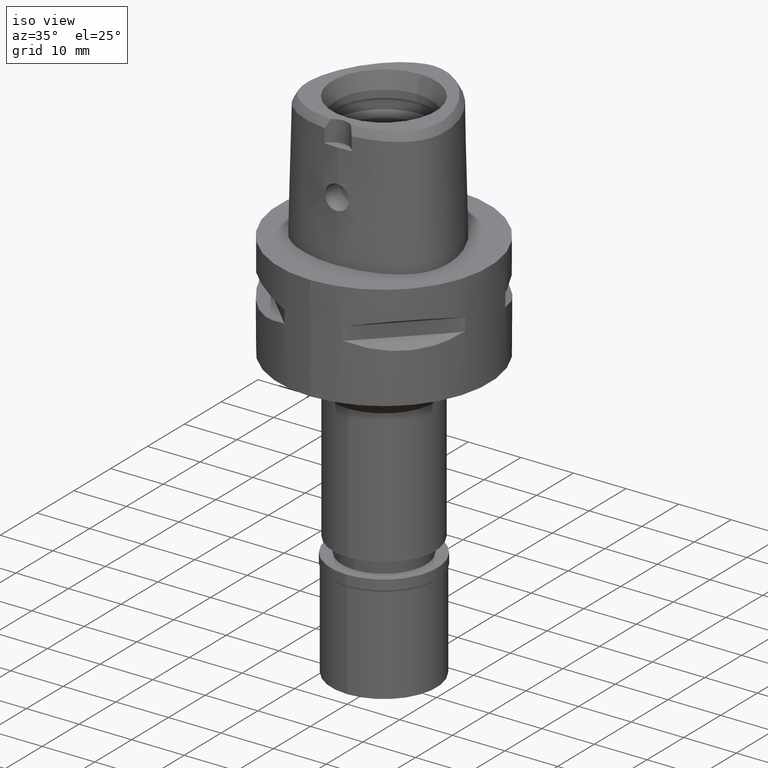
[diagram: clean part render]
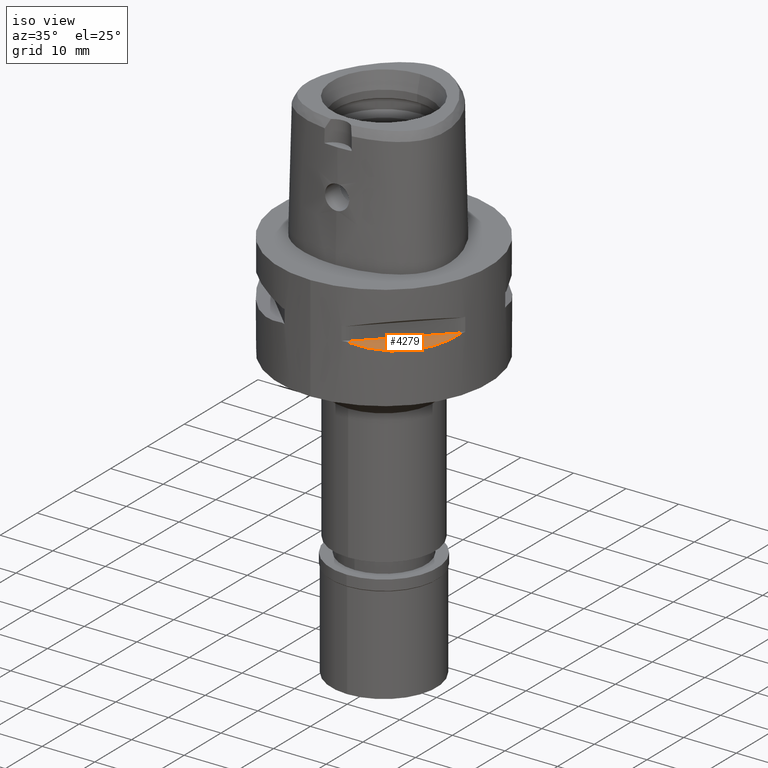
[diagram: same view with one face highlighted and labeled with its STEP entity id]
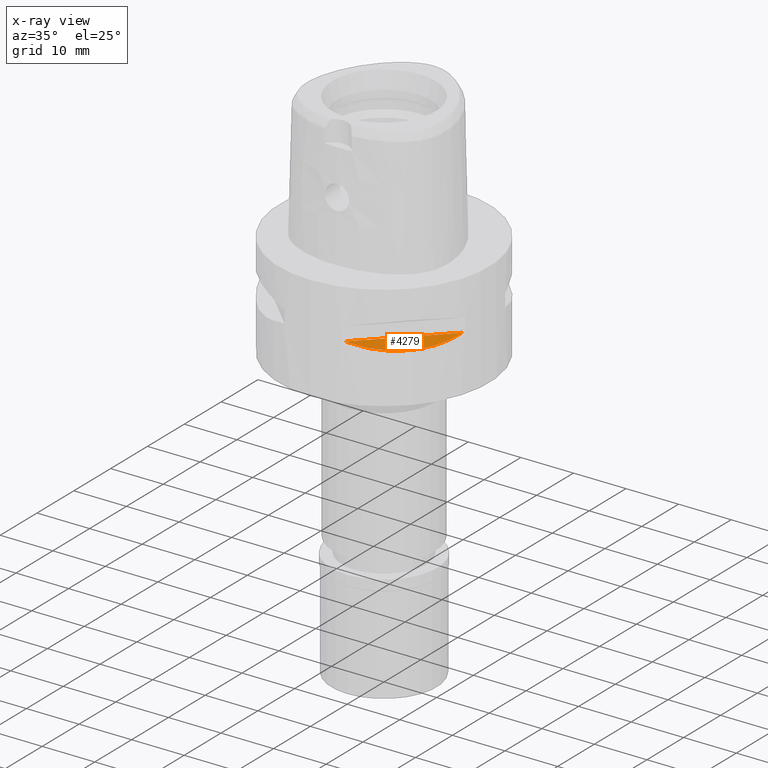
[diagram: x-ray of the same camera — body ghosted, the highlighted face saturated]
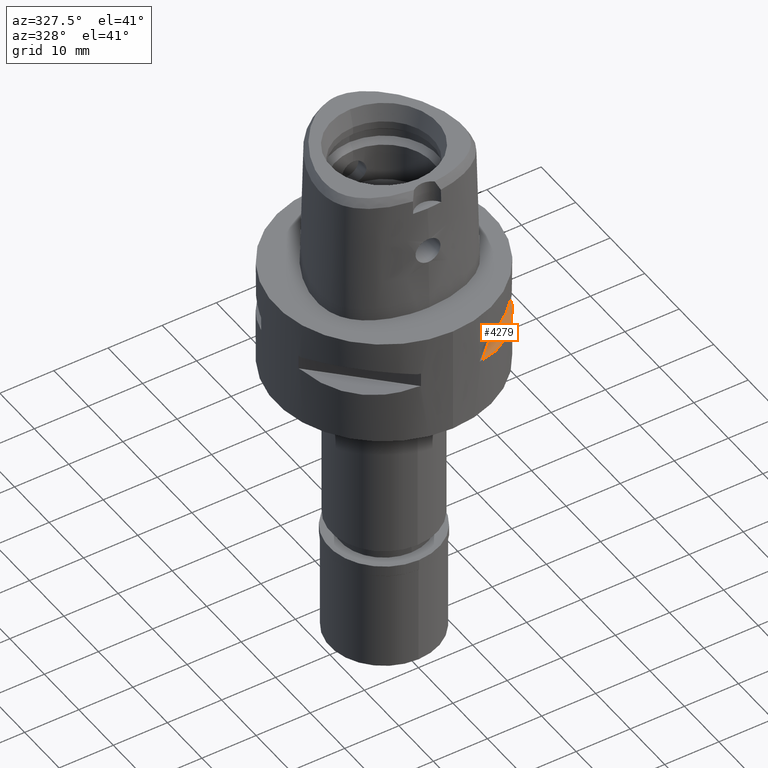
[diagram: same view with one face highlighted and labeled with its STEP entity id]
A machine part, iso view. The second image highlights one B-rep face of the part: STEP entity #4279.
The next image is the same camera in x-ray: the body ghosted, the highlighted face saturated — about 0% of this face is hidden behind the body in this view.
A second angle (auxiliary view) of the same face is appended — the face is thin or edge-on in the first view.
In plain terms, the highlighted planar face has unit normal (-0.3536, 0.3536, -0.866).
Its self-contained STEP definition (entity closure, byte-faithful):
#39 = CARTESIAN_POINT ( 'NONE',  ( 19.06685920573999837, -6.037787676659999825, -9.299999999999998934 ) ) ;
#67 = CARTESIAN_POINT ( 'NONE',  ( 10.35096251251713717, -17.11329306682733176, -10.26330621669055176 ) ) ;
#88 = CARTESIAN_POINT ( 'NONE',  ( 6.037787676656000357, -19.06685920573999837, -9.299999999999998934 ) ) ;
#95 = ORIENTED_EDGE ( 'NONE', *, *, #4038, .T. ) ;
#273 = CARTESIAN_POINT ( 'NONE',  ( 19.06685920573999837, -6.037787676659999825, -9.299999999999998934 ) ) ;
#378 = CARTESIAN_POINT ( 'NONE',  ( 10.48392761238932991, -17.03197491928983354, -10.28439099668885603 ) ) ;
#397 = CARTESIAN_POINT ( 'NONE',  ( 7.974729623743645135, -18.37435100509166119, -9.808037949577006032 ) ) ;
#446 = CARTESIAN_POINT ( 'NONE',  ( 15.46304525448330125, -12.72622750480186582, -10.55929324095830424 ) ) ;
#464 = CARTESIAN_POINT ( 'NONE',  ( 6.825550513459674562, -18.81740308416003060, -9.519762796232880575 ) ) ;
#535 = VERTEX_POINT ( 'NONE', #273 ) ;
#577 = VECTOR ( 'NONE', #2973, 1000.000000000000114 ) ;
#609 = CARTESIAN_POINT ( 'NONE',  ( 23.15892515900000248, -1.945721723402000114, -9.299999999999998934 ) ) ;
#656 = DIRECTION ( 'NONE',  ( -0.3535533905933049836, 0.3535533905933054277, -0.8660254037844130615 ) ) ;
#770 = CARTESIAN_POINT ( 'NONE',  ( 16.65304730897558017, -11.07873582669009060, -10.37252388421066307 ) ) ;
#1399 = B_SPLINE_CURVE_WITH_KNOTS ( 'NONE', 3,
 ( #88, #464, #397, #1477, #3326, #2538, #67, #2216, #4067, #378, #4383, #1529, #1504, #446, #3753, #770, #1860, #4043, #2564, #1925, #2980, #3732, #3394, #39 ),
 .UNSPECIFIED., .F., .F.,
 ( 4, 1, 1, 1, 1, 1, 2, 2, 2, 1, 1, 1, 1, 1, 2, 2, 4 ),
 ( 0.0000000000000000000, 0.1250000000000074385, 0.1875000000000112133, 0.2187500000000129619, 0.2343750000000136835, 0.2421875000000140721, 0.2460937500000141553, 0.2500000000000142109, 0.5000000000000083267, 0.6250000000000056621, 0.6875000000000044409, 0.7187500000000041078, 0.7343750000000041078, 0.7421875000000038858, 0.7460937500000037748, 0.7500000000000036637, 1.000000000000000000 ),
 .UNSPECIFIED. ) ;
#1477 = CARTESIAN_POINT ( 'NONE',  ( 9.258624582139979964, -17.73693809362364604, -10.07196314005110338 ) ) ;
#1504 = CARTESIAN_POINT ( 'NONE',  ( 14.69143800709240466, -13.59286613331295968, -10.59808963984104402 ) ) ;
#1529 = CARTESIAN_POINT ( 'NONE',  ( 13.04353085700167547, -15.24067460456056899, -10.59804935437203710 ) ) ;
#1770 = LINE ( 'NONE', #2667, #577 ) ;
#1860 = CARTESIAN_POINT ( 'NONE',  ( 16.83802176568748266, -10.79324770715335546, -10.33148935319415429 ) ) ;
#1925 = CARTESIAN_POINT ( 'NONE',  ( 16.99353821201635384, -10.54606745823041969, -10.29406776248771038 ) ) ;
#2200 = ORIENTED_EDGE ( 'NONE', *, *, #3369, .F. ) ;
#2216 = CARTESIAN_POINT ( 'NONE',  ( 10.41688921769676845, -17.07309310408689740, -10.27380911531055219 ) ) ;
#2475 = EDGE_LOOP ( 'NONE', ( #2200, #95 ) ) ;
#2487 = FACE_OUTER_BOUND ( 'NONE', #2475, .T. ) ;
#2538 = CARTESIAN_POINT ( 'NONE',  ( 10.19668967436151874, -17.20615142661320363, -10.23823386088636234 ) ) ;
#2564 = CARTESIAN_POINT ( 'NONE',  ( 16.96779488243694090, -10.58740791271448067, -10.30043526206618409 ) ) ;
#2667 = CARTESIAN_POINT ( 'NONE',  ( 6.037787676657999647, -19.06685920573999837, -9.299999999999998934 ) ) ;
#2793 = AXIS2_PLACEMENT_3D ( 'NONE', #609, #656, #4352 ) ;
#2973 = DIRECTION ( 'NONE',  ( 0.7071067811865474617, 0.7071067811865474617, 0.0000000000000000000 ) ) ;
#2980 = CARTESIAN_POINT ( 'NONE',  ( 17.00564674891198891, -10.52654956716422241, -10.29104290631413221 ) ) ;
#3326 = CARTESIAN_POINT ( 'NONE',  ( 9.886368560437741593, -17.38810193308424701, -10.18582677984797691 ) ) ;
#3369 = EDGE_CURVE ( 'NONE', #4164, #535, #1770, .T. ) ;
#3394 = CARTESIAN_POINT ( 'NONE',  ( 18.56782271116848548, -7.613705726455985534, -9.739635053951698040 ) ) ;
#3593 = CARTESIAN_POINT ( 'NONE',  ( 6.037787676656000357, -19.06685920573999837, -9.299999999999998934 ) ) ;
#3732 = CARTESIAN_POINT ( 'NONE',  ( 17.88526274347993450, -9.102657680280984209, -10.06884320373569430 ) ) ;
#3753 = CARTESIAN_POINT ( 'NONE',  ( 16.27164763637737721, -11.64036391731947795, -10.44610182776490781 ) ) ;
#3941 = PLANE ( 'NONE',  #2793 ) ;
#4038 = EDGE_CURVE ( 'NONE', #4164, #535, #1399, .T. ) ;
#4043 = CARTESIAN_POINT ( 'NONE',  ( 16.92907764914662749, -10.64933512882947220, -10.30991069787605241 ) ) ;
#4067 = CARTESIAN_POINT ( 'NONE',  ( 10.46079808215908002, -17.04620345718611318, -10.28075718178507714 ) ) ;
#4164 = VERTEX_POINT ( 'NONE', #3593 ) ;
#4279 = ADVANCED_FACE ( 'NONE', ( #2487 ), #3941, .F. ) ;
#4352 = DIRECTION ( 'NONE',  ( -0.9258200997725358761, 0.0000000000000000000, 0.3779644730092654448 ) ) ;
#4383 = CARTESIAN_POINT ( 'NONE',  ( 11.83046278587288391, -16.20025983929860303, -10.49456541975357027 ) ) ;